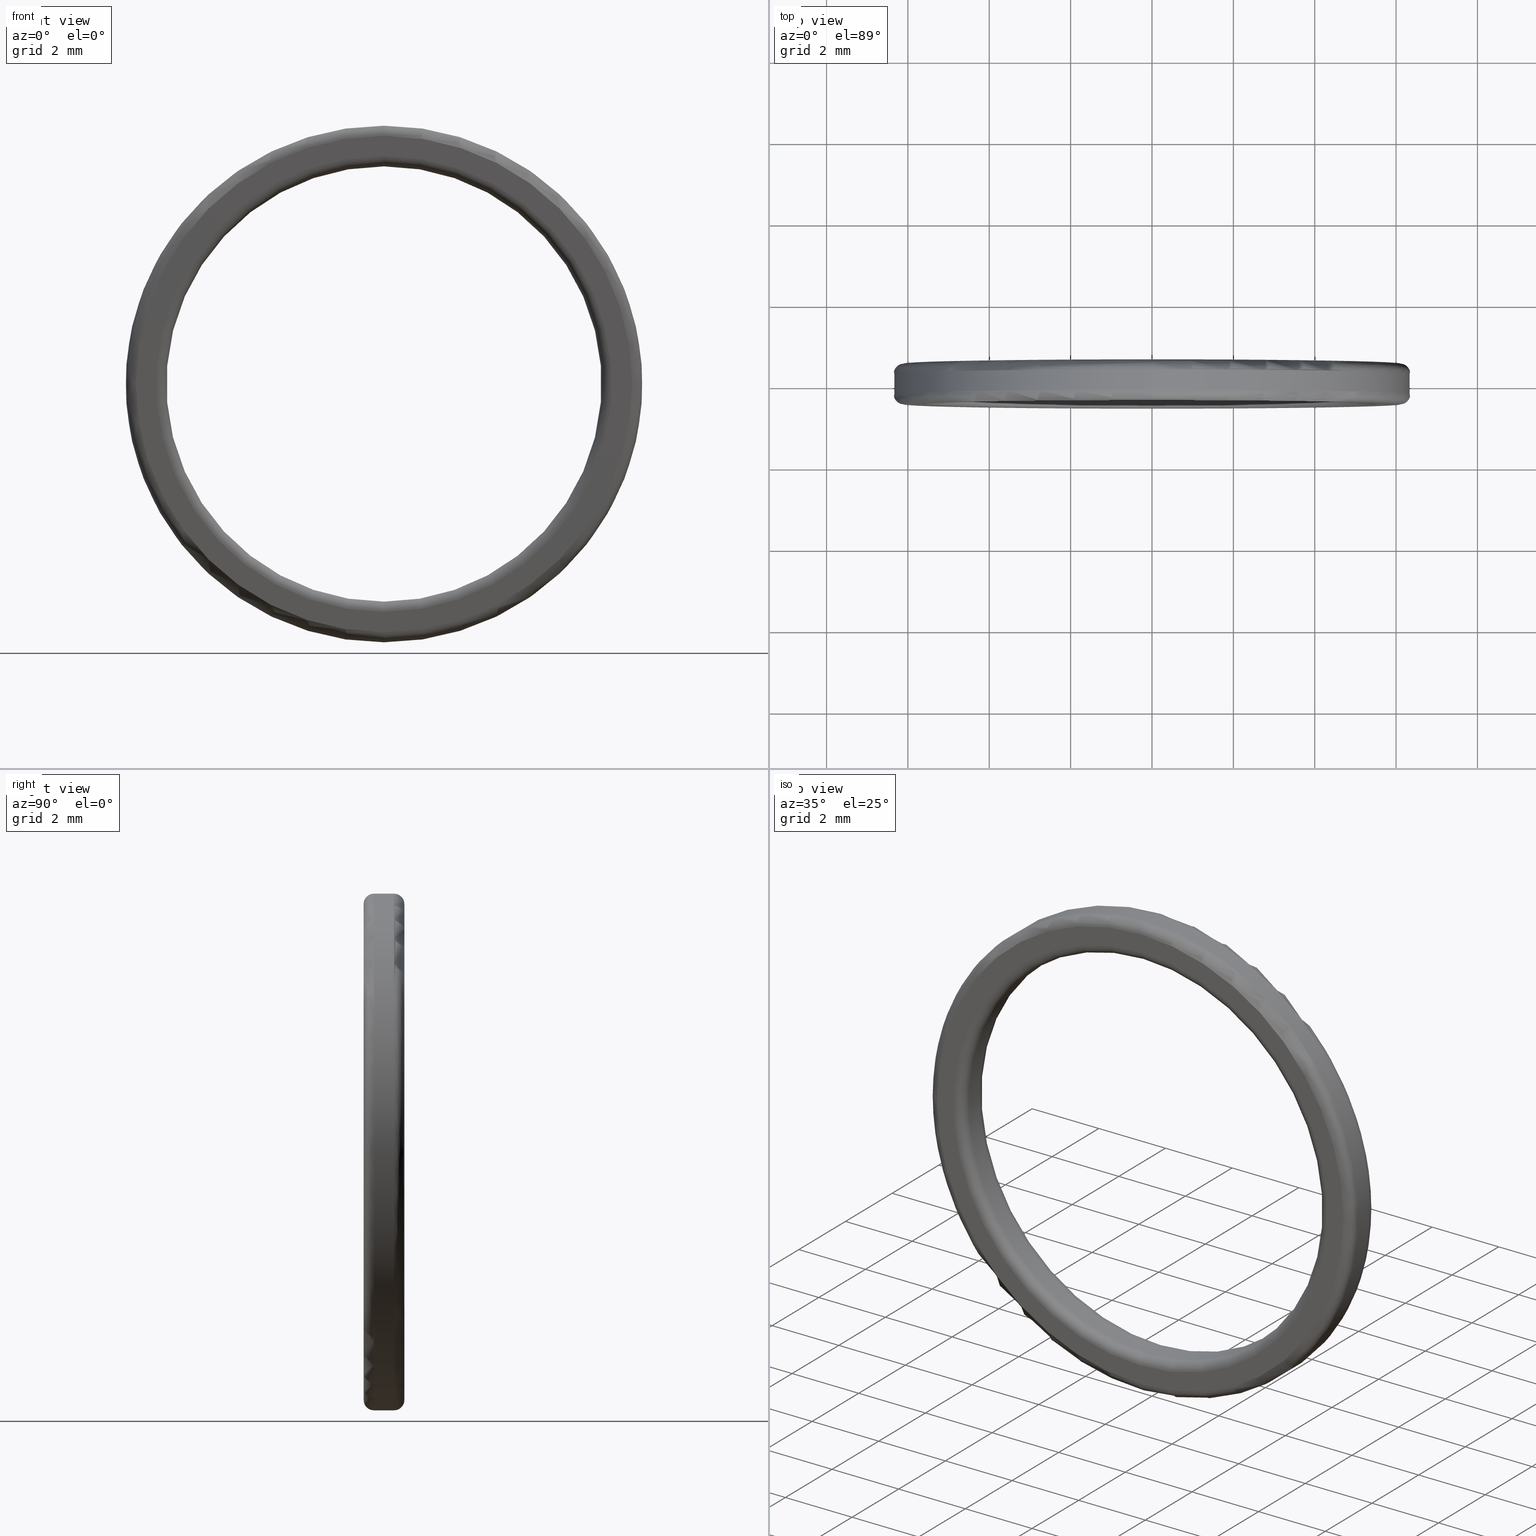
[diagram: canonical four-view strip — front | top / right | iso, engineering-drawing reading convention]
A machine part, canonical four-view strip (front | top / right | iso — engineering-drawing reading convention). The complete STEP part file that produces these views, byte-faithful:
ISO-10303-21;
HEADER;
FILE_DESCRIPTION (( 'STEP AP203' ),
    '1' );
FILE_NAME ('1.8.5.23_ZFK-D0.5_0.5Ӣ���ط�����Ȧ.STEP',
    '2021-07-10T05:47:58',
    ( 'China' ),
    ( 'Home' ),
    'SwSTEP 2.0',
    'SolidWorks 2018',
    '' );
FILE_SCHEMA (( 'CONFIG_CONTROL_DESIGN' ));
ENDSEC;

DATA;
#1 = EDGE_CURVE ( 'NONE', #338, #386, #188, .T. ) ;
#2 = CARTESIAN_POINT ( 'NONE',  ( 0.0000000000000000000, 0.2499999999999993616, 5.349999999999993427 ) ) ;
#3 = CARTESIAN_POINT ( 'NONE',  ( 0.0000000000000000000, -0.2500000000000011102, 6.099999999999994316 ) ) ;
#4 = UNCERTAINTY_MEASURE_WITH_UNIT (LENGTH_MEASURE( 1.000000000000000082E-05 ), #146, 'distance_accuracy_value', 'NONE');
#5 = DIRECTION ( 'NONE',  ( 0.0000000000000000000, 0.0000000000000000000, 1.000000000000000000 ) ) ;
#6 = ORIENTED_EDGE ( 'NONE', *, *, #33, .T. ) ;
#7 = CARTESIAN_POINT ( 'NONE',  ( 0.0000000000000000000, 0.2499999999999993616, 0.0000000000000000000 ) ) ;
#8 = CC_DESIGN_APPROVAL ( #421, ( #311 ) ) ;
#9 = DIRECTION ( 'NONE',  ( 0.0000000000000000000, 0.0000000000000000000, 1.000000000000000000 ) ) ;
#10 = CIRCLE ( 'NONE', #206, 5.599999999999994316 ) ;
#11 = DIRECTION ( 'NONE',  ( -0.0000000000000000000, 1.000000000000000000, -0.0000000000000000000 ) ) ;
#12 = ADVANCED_FACE ( 'NONE', ( #340 ), #108, .T. ) ;
#13 = PERSON_AND_ORGANIZATION ( #253, #222 ) ;
#14 = CARTESIAN_POINT ( 'NONE',  ( 0.0000000000000000000, 4.847222222222231203, 0.0000000000000000000 ) ) ;
#15 = EDGE_LOOP ( 'NONE', ( #293, #103, #36, #109 ) ) ;
#16 = DIRECTION ( 'NONE',  ( -0.0000000000000000000, 1.000000000000000000, -0.0000000000000000000 ) ) ;
#17 = ADVANCED_FACE ( 'NONE', ( #360 ), #366, .T. ) ;
#18 = AXIS2_PLACEMENT_3D ( 'NONE', #244, #448, #414 ) ;
#19 = DIRECTION ( 'NONE',  ( -0.0000000000000000000, 1.000000000000000000, -0.0000000000000000000 ) ) ;
#20 = CARTESIAN_POINT ( 'NONE',  ( 0.0000000000000000000, 0.2499999999999993616, 0.0000000000000000000 ) ) ;
#21 = ORIENTED_EDGE ( 'NONE', *, *, #223, .T. ) ;
#22 = EDGE_CURVE ( 'NONE', #144, #455, #126, .T. ) ;
#23 = CIRCLE ( 'NONE', #63, 0.2500000000000002220 ) ;
#24 = PLANE ( 'NONE',  #257 ) ;
#25 = PERSON_AND_ORGANIZATION_ROLE ( 'classification_officer' ) ;
#26 = LOCAL_TIME ( 13, 47, 58.00000000000000000, #347 ) ;
#27 = AXIS2_PLACEMENT_3D ( 'NONE', #205, #240, #444 ) ;
#28 = FACE_OUTER_BOUND ( 'NONE', #443, .T. ) ;
#29 = LOCAL_TIME ( 13, 47, 58.00000000000000000, #246 ) ;
#30 = VERTEX_POINT ( 'NONE', #290 ) ;
#31 = MANIFOLD_SOLID_BREP ( 'Բ��1', #177 ) ;
#32 = PERSON_AND_ORGANIZATION ( #253, #222 ) ;
#33 = EDGE_CURVE ( 'NONE', #215, #219, #94, .T. ) ;
#34 = APPROVAL_STATUS ( 'not_yet_approved' ) ;
#35 = PERSON_AND_ORGANIZATION_ROLE ( 'design_supplier' ) ;
#36 = ORIENTED_EDGE ( 'NONE', *, *, #301, .F. ) ;
#37 =( NAMED_UNIT ( * ) SI_UNIT ( $, .STERADIAN. ) SOLID_ANGLE_UNIT ( ) );
#38 = EDGE_LOOP ( 'NONE', ( #397, #84 ) ) ;
#39 = AXIS2_PLACEMENT_3D ( 'NONE', #430, #195, #433 ) ;
#40 = ORIENTED_EDGE ( 'NONE', *, *, #97, .T. ) ;
#41 = DIRECTION ( 'NONE',  ( -0.0000000000000000000, 1.000000000000000000, -0.0000000000000000000 ) ) ;
#42 = CARTESIAN_POINT ( 'NONE',  ( 0.0000000000000000000, -0.2500000000000011102, 0.0000000000000000000 ) ) ;
#43 = AXIS2_PLACEMENT_3D ( 'NONE', #14, #400, #302 ) ;
#44 = ORIENTED_EDGE ( 'NONE', *, *, #404, .T. ) ;
#45 = DIRECTION ( 'NONE',  ( -1.000000000000000000, 0.0000000000000000000, 0.0000000000000000000 ) ) ;
#46 =( GEOMETRIC_REPRESENTATION_CONTEXT ( 3 ) GLOBAL_UNCERTAINTY_ASSIGNED_CONTEXT ( ( #4 ) ) GLOBAL_UNIT_ASSIGNED_CONTEXT ( ( #146, #173, #37 ) ) REPRESENTATION_CONTEXT ( 'NONE', 'WORKASPACE' ) );
#47 = DIRECTION ( 'NONE',  ( 0.0000000000000000000, -1.000000000000000000, 0.0000000000000000000 ) ) ;
#48 = DIRECTION ( 'NONE',  ( 0.0000000000000000000, -1.000000000000000000, 0.0000000000000000000 ) ) ;
#49 = EDGE_CURVE ( 'NONE', #215, #135, #118, .T. ) ;
#50 = LOCAL_TIME ( 13, 47, 58.00000000000000000, #56 ) ;
#51 = CARTESIAN_POINT ( 'NONE',  ( 7.623426324692266325E-16, -0.5000000000000011102, -6.099999999999994316 ) ) ;
#52 = ORIENTED_EDGE ( 'NONE', *, *, #435, .F. ) ;
#53 = AXIS2_PLACEMENT_3D ( 'NONE', #186, #45, #77 ) ;
#54 = CARTESIAN_POINT ( 'NONE',  ( 0.0000000000000000000, 0.2499999999999993616, -6.099999999999994316 ) ) ;
#55 = DIRECTION ( 'NONE',  ( 0.0000000000000000000, -1.000000000000000000, 0.0000000000000000000 ) ) ;
#56 = COORDINATED_UNIVERSAL_TIME_OFFSET ( 8, 0, .AHEAD. ) ;
#57 = CARTESIAN_POINT ( 'NONE',  ( 0.0000000000000000000, 0.4999999999999989453, -6.099999999999994316 ) ) ;
#58 = CIRCLE ( 'NONE', #187, 6.099999999999994316 ) ;
#59 = DIRECTION ( 'NONE',  ( 0.0000000000000000000, 0.0000000000000000000, 1.000000000000000000 ) ) ;
#60 = EDGE_LOOP ( 'NONE', ( #292, #172, #74, #165 ) ) ;
#61 = APPROVAL_ROLE ( '' ) ;
#62 = APPROVAL_STATUS ( 'not_yet_approved' ) ;
#63 = AXIS2_PLACEMENT_3D ( 'NONE', #92, #332, #236 ) ;
#64 = ORIENTED_EDGE ( 'NONE', *, *, #1, .F. ) ;
#65 = EDGE_LOOP ( 'NONE', ( #269, #457, #341, #52 ) ) ;
#66 = DIRECTION ( 'NONE',  ( 1.000000000000000000, 0.0000000000000000000, 1.224646799147353207E-16 ) ) ;
#67 = AXIS2_PLACEMENT_3D ( 'NONE', #317, #75, #112 ) ;
#68 = CALENDAR_DATE ( 2021, 10, 7 ) ;
#69 = EDGE_CURVE ( 'NONE', #413, #386, #422, .T. ) ;
#70 = TOROIDAL_SURFACE ( 'NONE', #128, 6.099999999999994316, 0.2500000000000000000 ) ;
#71 = AXIS2_PLACEMENT_3D ( 'NONE', #79, #353, #289 ) ;
#72 = CARTESIAN_POINT ( 'NONE',  ( 0.0000000000000000000, 0.2499999999999993616, 0.0000000000000000000 ) ) ;
#73 = CIRCLE ( 'NONE', #169, 6.349999999999994316 ) ;
#74 = ORIENTED_EDGE ( 'NONE', *, *, #104, .T. ) ;
#75 = DIRECTION ( 'NONE',  ( 0.0000000000000000000, -1.000000000000000000, 0.0000000000000000000 ) ) ;
#76 = PRODUCT ( '1.8.5.23_ZFK-D0.5_0.5Ӣ���ط�����Ȧ', '1.8.5.23_ZFK-D0.5_0.5Ӣ���ط�����Ȧ', '', ( #280 ) ) ;
#77 = DIRECTION ( 'NONE',  ( 0.0000000000000000000, 0.0000000000000000000, 1.000000000000000000 ) ) ;
#78 = FACE_OUTER_BOUND ( 'NONE', #150, .T. ) ;
#79 = CARTESIAN_POINT ( 'NONE',  ( 0.0000000000000000000, -0.2500000000000011102, 0.0000000000000000000 ) ) ;
#80 = ORIENTED_EDGE ( 'NONE', *, *, #346, .F. ) ;
#81 = DIRECTION ( 'NONE',  ( 0.0000000000000000000, 0.0000000000000000000, -1.000000000000000000 ) ) ;
#82 = ADVANCED_FACE ( 'NONE', ( #28 ), #209, .T. ) ;
#83 = CC_DESIGN_SECURITY_CLASSIFICATION ( #311, ( #339 ) ) ;
#84 = ORIENTED_EDGE ( 'NONE', *, *, #1, .T. ) ;
#85 = DIRECTION ( 'NONE',  ( -0.0000000000000000000, 1.000000000000000000, -0.0000000000000000000 ) ) ;
#86 = DIRECTION ( 'NONE',  ( 0.0000000000000000000, 0.0000000000000000000, 1.000000000000000000 ) ) ;
#87 = EDGE_CURVE ( 'NONE', #231, #413, #299, .T. ) ;
#88 = CIRCLE ( 'NONE', #247, 5.599999999999994316 ) ;
#89 = ORIENTED_EDGE ( 'NONE', *, *, #132, .T. ) ;
#90 = CARTESIAN_POINT ( 'NONE',  ( 0.0000000000000000000, -0.5000000000000011102, 6.099999999999994316 ) ) ;
#91 = AXIS2_PLACEMENT_3D ( 'NONE', #391, #47, #5 ) ;
#92 = CARTESIAN_POINT ( 'NONE',  ( 6.858022075225169677E-16, 0.2499999999999993616, 5.599999999999994316 ) ) ;
#93 = VECTOR ( 'NONE', #176, 1000.000000000000000 ) ;
#94 = CIRCLE ( 'NONE', #91, 6.099999999999994316 ) ;
#95 = DIRECTION ( 'NONE',  ( -0.0000000000000000000, 1.000000000000000000, -0.0000000000000000000 ) ) ;
#96 = ORIENTED_EDGE ( 'NONE', *, *, #376, .T. ) ;
#97 = EDGE_CURVE ( 'NONE', #129, #423, #262, .T. ) ;
#98 = APPROVAL_PERSON_ORGANIZATION ( #249, #368, #148 ) ;
#99 = DIRECTION ( 'NONE',  ( 0.0000000000000000000, 0.0000000000000000000, 1.000000000000000000 ) ) ;
#100 = AXIS2_PLACEMENT_3D ( 'NONE', #252, #393, #387 ) ;
#101 = DATE_AND_TIME ( #298, #26 ) ;
#102 = EDGE_LOOP ( 'NONE', ( #420, #263, #113, #288 ) ) ;
#103 = ORIENTED_EDGE ( 'NONE', *, *, #388, .T. ) ;
#104 = EDGE_CURVE ( 'NONE', #135, #144, #276, .T. ) ;
#105 = DIRECTION ( 'NONE',  ( 0.0000000000000000000, 0.0000000000000000000, -1.000000000000000000 ) ) ;
#106 = APPLICATION_CONTEXT ( 'configuration controlled 3d designs of mechanical parts and assemblies' ) ;
#107 = CARTESIAN_POINT ( 'NONE',  ( 0.0000000000000000000, 4.847222222222231203, 5.349999999999993427 ) ) ;
#108 = TOROIDAL_SURFACE ( 'NONE', #67, 5.599999999999994316, 0.2500000000000000000 ) ;
#109 = ORIENTED_EDGE ( 'NONE', *, *, #449, .F. ) ;
#110 = PRODUCT_RELATED_PRODUCT_CATEGORY ( 'detail', '', ( #76 ) ) ;
#111 = ORIENTED_EDGE ( 'NONE', *, *, #33, .F. ) ;
#112 = DIRECTION ( 'NONE',  ( 0.0000000000000000000, 0.0000000000000000000, -1.000000000000000000 ) ) ;
#113 = ORIENTED_EDGE ( 'NONE', *, *, #291, .F. ) ;
#114 = AXIS2_PLACEMENT_3D ( 'NONE', #117, #453, #424 ) ;
#115 = CIRCLE ( 'NONE', #27, 0.2500000000000002220 ) ;
#116 = CARTESIAN_POINT ( 'NONE',  ( 0.0000000000000000000, 0.4999999999999989453, 0.0000000000000000000 ) ) ;
#117 = CARTESIAN_POINT ( 'NONE',  ( 0.0000000000000000000, -0.5000000000000011102, 0.0000000000000000000 ) ) ;
#118 = CIRCLE ( 'NONE', #159, 0.2500000000000002220 ) ;
#119 = PRODUCT_DEFINITION ( 'δ֪', '', #339, #136 ) ;
#120 = PERSON_AND_ORGANIZATION ( #253, #222 ) ;
#121 = DIRECTION ( 'NONE',  ( -0.0000000000000000000, 1.000000000000000000, -0.0000000000000000000 ) ) ;
#122 = CARTESIAN_POINT ( 'NONE',  ( 0.0000000000000000000, 4.847222222222231203, 0.0000000000000000000 ) ) ;
#123 = EDGE_CURVE ( 'NONE', #345, #135, #254, .T. ) ;
#124 = FACE_OUTER_BOUND ( 'NONE', #355, .T. ) ;
#125 = DIRECTION ( 'NONE',  ( 0.0000000000000000000, 0.0000000000000000000, 1.000000000000000000 ) ) ;
#126 = CIRCLE ( 'NONE', #100, 6.349999999999994316 ) ;
#127 = DIRECTION ( 'NONE',  ( 0.0000000000000000000, 0.0000000000000000000, -1.000000000000000000 ) ) ;
#128 = AXIS2_PLACEMENT_3D ( 'NONE', #7, #258, #161 ) ;
#129 = VERTEX_POINT ( 'NONE', #2 ) ;
#130 = PERSON_AND_ORGANIZATION ( #253, #222 ) ;
#131 = CARTESIAN_POINT ( 'NONE',  ( 0.0000000000000000000, 0.2499999999999993616, 6.349999999999994316 ) ) ;
#132 = EDGE_CURVE ( 'NONE', #326, #450, #349, .T. ) ;
#133 = ADVANCED_FACE ( 'NONE', ( #286 ), #183, .T. ) ;
#134 = CARTESIAN_POINT ( 'NONE',  ( 7.470345474798847390E-16, -0.2500000000000011102, -6.099999999999994316 ) ) ;
#135 = VERTEX_POINT ( 'NONE', #320 ) ;
#136 = DESIGN_CONTEXT ( 'detailed design', #106, 'design' ) ;
#137 = CARTESIAN_POINT ( 'NONE',  ( 0.0000000000000000000, 0.0000000000000000000, 0.0000000000000000000 ) ) ;
#138 = ORIENTED_EDGE ( 'NONE', *, *, #435, .T. ) ;
#139 = DIRECTION ( 'NONE',  ( -0.0000000000000000000, 1.000000000000000000, -0.0000000000000000000 ) ) ;
#140 = CYLINDRICAL_SURFACE ( 'NONE', #452, 5.349999999999993427 ) ;
#141 = LINE ( 'NONE', #107, #93 ) ;
#142 = DIRECTION ( 'NONE',  ( 0.0000000000000000000, 0.0000000000000000000, -1.000000000000000000 ) ) ;
#143 = DIRECTION ( 'NONE',  ( 0.0000000000000000000, -1.000000000000000000, 0.0000000000000000000 ) ) ;
#144 = VERTEX_POINT ( 'NONE', #131 ) ;
#145 = DIRECTION ( 'NONE',  ( 0.0000000000000000000, -1.000000000000000000, 0.0000000000000000000 ) ) ;
#146 =( LENGTH_UNIT ( ) NAMED_UNIT ( * ) SI_UNIT ( .MILLI., .METRE. ) );
#147 = CIRCLE ( 'NONE', #271, 6.349999999999994316 ) ;
#148 = APPROVAL_ROLE ( '' ) ;
#149 = AXIS2_PLACEMENT_3D ( 'NONE', #164, #48, #81 ) ;
#150 = EDGE_LOOP ( 'NONE', ( #6, #447 ) ) ;
#151 = APPROVAL_ROLE ( '' ) ;
#152 = AXIS2_PLACEMENT_3D ( 'NONE', #72, #221, #456 ) ;
#153 = EDGE_LOOP ( 'NONE', ( #178, #369 ) ) ;
#154 = AXIS2_PLACEMENT_3D ( 'NONE', #365, #166, #403 ) ;
#155 = DIRECTION ( 'NONE',  ( 0.0000000000000000000, 0.0000000000000000000, 1.000000000000000000 ) ) ;
#156 = CARTESIAN_POINT ( 'NONE',  ( 0.0000000000000000000, -0.2500000000000011102, 0.0000000000000000000 ) ) ;
#157 = DIRECTION ( 'NONE',  ( 0.0000000000000000000, 0.0000000000000000000, 1.000000000000000000 ) ) ;
#158 = FACE_OUTER_BOUND ( 'NONE', #283, .T. ) ;
#159 = AXIS2_PLACEMENT_3D ( 'NONE', #3, #319, #189 ) ;
#160 = ORIENTED_EDGE ( 'NONE', *, *, #388, .F. ) ;
#161 = DIRECTION ( 'NONE',  ( 0.0000000000000000000, 0.0000000000000000000, -1.000000000000000000 ) ) ;
#162 = EDGE_CURVE ( 'NONE', #30, #210, #88, .T. ) ;
#163 = ADVANCED_FACE ( 'NONE', ( #174 ), #336, .T. ) ;
#164 = CARTESIAN_POINT ( 'NONE',  ( 0.0000000000000000000, 0.2499999999999993616, 0.0000000000000000000 ) ) ;
#165 = ORIENTED_EDGE ( 'NONE', *, *, #22, .T. ) ;
#166 = DIRECTION ( 'NONE',  ( -0.0000000000000000000, 1.000000000000000000, -0.0000000000000000000 ) ) ;
#167 = SHAPE_DEFINITION_REPRESENTATION ( #440, #277 ) ;
#168 = CARTESIAN_POINT ( 'NONE',  ( 0.0000000000000000000, 0.2499999999999993616, 0.0000000000000000000 ) ) ;
#169 = AXIS2_PLACEMENT_3D ( 'NONE', #232, #297, #86 ) ;
#170 = CARTESIAN_POINT ( 'NONE',  ( 6.551860375438331807E-16, 4.847222222222231203, -5.349999999999993427 ) ) ;
#171 = FACE_OUTER_BOUND ( 'NONE', #402, .T. ) ;
#172 = ORIENTED_EDGE ( 'NONE', *, *, #123, .T. ) ;
#173 =( NAMED_UNIT ( * ) PLANE_ANGLE_UNIT ( ) SI_UNIT ( $, .RADIAN. ) );
#174 = FACE_OUTER_BOUND ( 'NONE', #316, .T. ) ;
#175 = EDGE_CURVE ( 'NONE', #135, #345, #73, .T. ) ;
#176 = DIRECTION ( 'NONE',  ( -0.0000000000000000000, 1.000000000000000000, -0.0000000000000000000 ) ) ;
#177 = CLOSED_SHELL ( 'NONE', ( #227, #425, #82, #133, #327, #163, #264, #395, #230, #329, #401, #17, #12, #191 ) ) ;
#178 = ORIENTED_EDGE ( 'NONE', *, *, #301, .T. ) ;
#179 = AXIS2_PLACEMENT_3D ( 'NONE', #116, #351, #127 ) ;
#180 = VECTOR ( 'NONE', #19, 1000.000000000000000 ) ;
#181 = FACE_OUTER_BOUND ( 'NONE', #15, .T. ) ;
#182 = CARTESIAN_POINT ( 'NONE',  ( 0.0000000000000000000, 4.847222222222231203, 6.349999999999994316 ) ) ;
#183 = TOROIDAL_SURFACE ( 'NONE', #432, 5.599999999999994316, 0.2500000000000000000 ) ;
#184 = ORIENTED_EDGE ( 'NONE', *, *, #49, .F. ) ;
#185 = CARTESIAN_POINT ( 'NONE',  ( 0.0000000000000000000, -0.2500000000000011102, 0.0000000000000000000 ) ) ;
#186 = CARTESIAN_POINT ( 'NONE',  ( 0.0000000000000000000, -0.2500000000000011102, 5.599999999999994316 ) ) ;
#187 = AXIS2_PLACEMENT_3D ( 'NONE', #428, #294, #361 ) ;
#188 = CIRCLE ( 'NONE', #114, 5.599999999999994316 ) ;
#189 = DIRECTION ( 'NONE',  ( 0.0000000000000000000, 0.0000000000000000000, 1.000000000000000000 ) ) ;
#190 = CARTESIAN_POINT ( 'NONE',  ( 6.551860375438331807E-16, -0.2500000000000011102, -5.349999999999993427 ) ) ;
#191 = ADVANCED_FACE ( 'NONE', ( #158 ), #70, .T. ) ;
#192 = COORDINATED_UNIVERSAL_TIME_OFFSET ( 8, 0, .AHEAD. ) ;
#193 = CC_DESIGN_PERSON_AND_ORGANIZATION_ASSIGNMENT ( #382, #272, ( #76 ) ) ;
#194 = ORIENTED_EDGE ( 'NONE', *, *, #381, .F. ) ;
#195 = DIRECTION ( 'NONE',  ( 1.000000000000000000, 0.0000000000000000000, 1.224646799147353207E-16 ) ) ;
#196 = CARTESIAN_POINT ( 'NONE',  ( 6.858022075225169677E-16, -0.5000000000000011102, -5.599999999999994316 ) ) ;
#197 = EDGE_CURVE ( 'NONE', #219, #215, #58, .T. ) ;
#198 = DATE_AND_TIME ( #238, #226 ) ;
#199 = CIRCLE ( 'NONE', #18, 0.2500000000000002220 ) ;
#200 = CARTESIAN_POINT ( 'NONE',  ( 0.0000000000000000000, -0.2500000000000011102, 0.0000000000000000000 ) ) ;
#201 = ORIENTED_EDGE ( 'NONE', *, *, #175, .T. ) ;
#202 = EDGE_LOOP ( 'NONE', ( #373, #409, #248, #64 ) ) ;
#203 = DIRECTION ( 'NONE',  ( -0.0000000000000000000, 1.000000000000000000, -0.0000000000000000000 ) ) ;
#204 = CIRCLE ( 'NONE', #214, 5.349999999999993427 ) ;
#205 = CARTESIAN_POINT ( 'NONE',  ( 7.470345474798847390E-16, 0.2499999999999993616, 6.099999999999994316 ) ) ;
#206 = AXIS2_PLACEMENT_3D ( 'NONE', #233, #438, #142 ) ;
#207 = LINE ( 'NONE', #333, #324 ) ;
#208 = DATE_TIME_ROLE ( 'classification_date' ) ;
#209 = TOROIDAL_SURFACE ( 'NONE', #296, 6.099999999999994316, 0.2500000000000000000 ) ;
#210 = VERTEX_POINT ( 'NONE', #398 ) ;
#211 = APPROVAL_PERSON_ORGANIZATION ( #334, #421, #61 ) ;
#212 = CARTESIAN_POINT ( 'NONE',  ( 7.623426324692266325E-16, 0.4999999999999989453, 6.099999999999994316 ) ) ;
#213 = ORIENTED_EDGE ( 'NONE', *, *, #412, .F. ) ;
#214 = AXIS2_PLACEMENT_3D ( 'NONE', #168, #203, #337 ) ;
#215 = VERTEX_POINT ( 'NONE', #90 ) ;
#216 = FACE_BOUND ( 'NONE', #153, .T. ) ;
#217 = DATE_AND_TIME ( #396, #29 ) ;
#218 = DIRECTION ( 'NONE',  ( -0.0000000000000000000, 1.000000000000000000, -0.0000000000000000000 ) ) ;
#219 = VERTEX_POINT ( 'NONE', #51 ) ;
#220 = CC_DESIGN_DATE_AND_TIME_ASSIGNMENT ( #275, #407, ( #119 ) ) ;
#221 = DIRECTION ( 'NONE',  ( -0.0000000000000000000, 1.000000000000000000, -0.0000000000000000000 ) ) ;
#222 = ORGANIZATION ( 'δָ��', 'δָ��', '' ) ;
#223 = EDGE_CURVE ( 'NONE', #450, #326, #429, .T. ) ;
#224 = DIRECTION ( 'NONE',  ( -0.0000000000000000000, 1.000000000000000000, -0.0000000000000000000 ) ) ;
#225 = DIRECTION ( 'NONE',  ( 0.0000000000000000000, 0.0000000000000000000, 1.000000000000000000 ) ) ;
#226 = LOCAL_TIME ( 13, 47, 58.00000000000000000, #426 ) ;
#227 = ADVANCED_FACE ( 'NONE', ( #171 ), #419, .T. ) ;
#228 = AXIS2_PLACEMENT_3D ( 'NONE', #200, #143, #406 ) ;
#229 = DIRECTION ( 'NONE',  ( 0.0000000000000000000, 0.0000000000000000000, -1.000000000000000000 ) ) ;
#230 = ADVANCED_FACE ( 'NONE', ( #427 ), #279, .F. ) ;
#231 = VERTEX_POINT ( 'NONE', #190 ) ;
#232 = CARTESIAN_POINT ( 'NONE',  ( 0.0000000000000000000, -0.2500000000000011102, 0.0000000000000000000 ) ) ;
#233 = CARTESIAN_POINT ( 'NONE',  ( 0.0000000000000000000, 0.4999999999999989453, 0.0000000000000000000 ) ) ;
#234 = ORIENTED_EDGE ( 'NONE', *, *, #449, .T. ) ;
#235 = PLANE ( 'NONE',  #287 ) ;
#236 = DIRECTION ( 'NONE',  ( -1.224646799147353454E-16, 0.0000000000000000000, -1.000000000000000000 ) ) ;
#237 = AXIS2_PLACEMENT_3D ( 'NONE', #134, #66, #343 ) ;
#238 = CALENDAR_DATE ( 2021, 10, 7 ) ;
#239 = CIRCLE ( 'NONE', #384, 0.2500000000000002220 ) ;
#240 = DIRECTION ( 'NONE',  ( 1.000000000000000000, 0.0000000000000000000, -1.224646799147353207E-16 ) ) ;
#241 = CARTESIAN_POINT ( 'NONE',  ( 0.0000000000000000000, -0.2500000000000011102, 5.349999999999993427 ) ) ;
#242 = PERSON_AND_ORGANIZATION_ROLE ( 'creator' ) ;
#243 = APPROVAL ( #62, 'δָ��' ) ;
#244 = CARTESIAN_POINT ( 'NONE',  ( 0.0000000000000000000, 0.2499999999999993616, -5.599999999999994316 ) ) ;
#245 = DIRECTION ( 'NONE',  ( 1.000000000000000000, 0.0000000000000000000, 0.0000000000000000000 ) ) ;
#246 = COORDINATED_UNIVERSAL_TIME_OFFSET ( 8, 0, .AHEAD. ) ;
#247 = AXIS2_PLACEMENT_3D ( 'NONE', #260, #55, #229 ) ;
#248 = ORIENTED_EDGE ( 'NONE', *, *, #69, .T. ) ;
#249 = PERSON_AND_ORGANIZATION ( #253, #222 ) ;
#250 = TOROIDAL_SURFACE ( 'NONE', #154, 5.599999999999994316, 0.2500000000000000000 ) ;
#251 = EDGE_CURVE ( 'NONE', #231, #338, #389, .T. ) ;
#252 = CARTESIAN_POINT ( 'NONE',  ( 0.0000000000000000000, 0.2499999999999993616, 0.0000000000000000000 ) ) ;
#253 = PERSON ( 'δָ��', 'δָ��', 'δָ��', ('δָ��'), ('δָ��'), ('δָ��') ) ;
#254 = CIRCLE ( 'NONE', #306, 6.349999999999994316 ) ;
#255 = EDGE_LOOP ( 'NONE', ( #194, #304, #138, #40 ) ) ;
#256 = DIRECTION ( 'NONE',  ( -0.0000000000000000000, 1.000000000000000000, -0.0000000000000000000 ) ) ;
#257 = AXIS2_PLACEMENT_3D ( 'NONE', #265, #305, #267 ) ;
#258 = DIRECTION ( 'NONE',  ( 0.0000000000000000000, -1.000000000000000000, 0.0000000000000000000 ) ) ;
#259 = ORIENTED_EDGE ( 'NONE', *, *, #273, .F. ) ;
#260 = CARTESIAN_POINT ( 'NONE',  ( 0.0000000000000000000, 0.4999999999999989453, 0.0000000000000000000 ) ) ;
#261 = CC_DESIGN_PERSON_AND_ORGANIZATION_ASSIGNMENT ( #130, #35, ( #339 ) ) ;
#262 = CIRCLE ( 'NONE', #152, 5.349999999999993427 ) ;
#263 = ORIENTED_EDGE ( 'NONE', *, *, #251, .T. ) ;
#264 = ADVANCED_FACE ( 'NONE', ( #352 ), #411, .T. ) ;
#265 = CARTESIAN_POINT ( 'NONE',  ( 5.349999999999993427, -0.5000000000000011102, 0.0000000000000000000 ) ) ;
#266 = CARTESIAN_POINT ( 'NONE',  ( 6.551860375438331807E-16, 0.2499999999999993616, -5.349999999999993427 ) ) ;
#267 = DIRECTION ( 'NONE',  ( 0.0000000000000000000, 0.0000000000000000000, 1.000000000000000000 ) ) ;
#268 = ORIENTED_EDGE ( 'NONE', *, *, #273, .T. ) ;
#269 = ORIENTED_EDGE ( 'NONE', *, *, #371, .T. ) ;
#270 = DIRECTION ( 'NONE',  ( 0.0000000000000000000, -1.000000000000000000, 0.0000000000000000000 ) ) ;
#271 = AXIS2_PLACEMENT_3D ( 'NONE', #20, #270, #441 ) ;
#272 = PERSON_AND_ORGANIZATION_ROLE ( 'design_owner' ) ;
#273 = EDGE_CURVE ( 'NONE', #326, #455, #239, .T. ) ;
#274 = APPLICATION_PROTOCOL_DEFINITION ( 'international standard', 'config_control_design', 1994, #106 ) ;
#275 = DATE_AND_TIME ( #359, #454 ) ;
#276 = LINE ( 'NONE', #182, #385 ) ;
#277 = ADVANCED_BREP_SHAPE_REPRESENTATION ( '1.8.5.23_ZFK-D0.5_0.5Ӣ���ط�����Ȧ', ( #31, #282 ), #46 ) ;
#278 = ORIENTED_EDGE ( 'NONE', *, *, #197, .F. ) ;
#279 = CYLINDRICAL_SURFACE ( 'NONE', #357, 5.349999999999993427 ) ;
#280 = MECHANICAL_CONTEXT ( 'NONE', #410, 'mechanical' ) ;
#281 = ORIENTED_EDGE ( 'NONE', *, *, #175, .F. ) ;
#282 = AXIS2_PLACEMENT_3D ( 'NONE', #137, #342, #245 ) ;
#283 = EDGE_LOOP ( 'NONE', ( #331, #390, #268, #431 ) ) ;
#284 = PERSON_AND_ORGANIZATION ( #253, #222 ) ;
#285 = DIRECTION ( 'NONE',  ( 0.0000000000000000000, 0.0000000000000000000, 1.000000000000000000 ) ) ;
#286 = FACE_OUTER_BOUND ( 'NONE', #102, .T. ) ;
#287 = AXIS2_PLACEMENT_3D ( 'NONE', #370, #367, #308 ) ;
#288 = ORIENTED_EDGE ( 'NONE', *, *, #69, .F. ) ;
#289 = DIRECTION ( 'NONE',  ( 0.0000000000000000000, 0.0000000000000000000, 1.000000000000000000 ) ) ;
#290 = CARTESIAN_POINT ( 'NONE',  ( 6.858022075225169677E-16, 0.4999999999999991673, 5.599999999999994316 ) ) ;
#291 = EDGE_CURVE ( 'NONE', #386, #338, #307, .T. ) ;
#292 = ORIENTED_EDGE ( 'NONE', *, *, #404, .F. ) ;
#293 = ORIENTED_EDGE ( 'NONE', *, *, #97, .F. ) ;
#294 = DIRECTION ( 'NONE',  ( 0.0000000000000000000, -1.000000000000000000, 0.0000000000000000000 ) ) ;
#295 = CARTESIAN_POINT ( 'NONE',  ( 0.0000000000000000000, 4.847222222222231203, 0.0000000000000000000 ) ) ;
#296 = AXIS2_PLACEMENT_3D ( 'NONE', #185, #41, #285 ) ;
#297 = DIRECTION ( 'NONE',  ( -0.0000000000000000000, 1.000000000000000000, -0.0000000000000000000 ) ) ;
#298 = CALENDAR_DATE ( 2021, 10, 7 ) ;
#299 = CIRCLE ( 'NONE', #71, 5.349999999999993427 ) ;
#300 = ORIENTED_EDGE ( 'NONE', *, *, #312, .T. ) ;
#301 = EDGE_CURVE ( 'NONE', #210, #30, #10, .T. ) ;
#302 = DIRECTION ( 'NONE',  ( 0.0000000000000000000, 0.0000000000000000000, 1.000000000000000000 ) ) ;
#303 = ORIENTED_EDGE ( 'NONE', *, *, #123, .F. ) ;
#304 = ORIENTED_EDGE ( 'NONE', *, *, #87, .T. ) ;
#305 = DIRECTION ( 'NONE',  ( -0.0000000000000000000, 1.000000000000000000, 0.0000000000000000000 ) ) ;
#306 = AXIS2_PLACEMENT_3D ( 'NONE', #321, #121, #354 ) ;
#307 = CIRCLE ( 'NONE', #446, 5.599999999999994316 ) ;
#308 = DIRECTION ( 'NONE',  ( 0.0000000000000000000, -0.0000000000000000000, -1.000000000000000000 ) ) ;
#309 = CARTESIAN_POINT ( 'NONE',  ( 7.776507174585686247E-16, -0.2500000000000011102, -6.349999999999994316 ) ) ;
#310 = EDGE_LOOP ( 'NONE', ( #213, #111, #362, #303 ) ) ;
#311 = SECURITY_CLASSIFICATION ( '', '', #377 ) ;
#312 = EDGE_CURVE ( 'NONE', #455, #144, #147, .T. ) ;
#313 = CARTESIAN_POINT ( 'NONE',  ( 7.776507174585686247E-16, 0.2499999999999993616, -6.349999999999994316 ) ) ;
#314 = APPROVAL_STATUS ( 'not_yet_approved' ) ;
#315 = AXIS2_PLACEMENT_3D ( 'NONE', #335, #145, #105 ) ;
#316 = EDGE_LOOP ( 'NONE', ( #201, #44, #300, #356 ) ) ;
#317 = CARTESIAN_POINT ( 'NONE',  ( 0.0000000000000000000, 0.2499999999999993616, 0.0000000000000000000 ) ) ;
#318 = CIRCLE ( 'NONE', #228, 5.349999999999993427 ) ;
#319 = DIRECTION ( 'NONE',  ( -1.000000000000000000, 0.0000000000000000000, 0.0000000000000000000 ) ) ;
#320 = CARTESIAN_POINT ( 'NONE',  ( 0.0000000000000000000, -0.2500000000000011102, 6.349999999999994316 ) ) ;
#321 = CARTESIAN_POINT ( 'NONE',  ( 0.0000000000000000000, -0.2500000000000011102, 0.0000000000000000000 ) ) ;
#322 = DATE_AND_TIME ( #68, #50 ) ;
#323 = CC_DESIGN_APPROVAL ( #368, ( #119 ) ) ;
#324 = VECTOR ( 'NONE', #95, 1000.000000000000000 ) ;
#325 = CARTESIAN_POINT ( 'NONE',  ( 0.0000000000000000000, 0.4999999999999989453, 0.0000000000000000000 ) ) ;
#326 = VERTEX_POINT ( 'NONE', #57 ) ;
#327 = ADVANCED_FACE ( 'NONE', ( #416 ), #140, .F. ) ;
#328 = CC_DESIGN_PERSON_AND_ORGANIZATION_ASSIGNMENT ( #32, #25, ( #311 ) ) ;
#329 = ADVANCED_FACE ( 'NONE', ( #216, #124 ), #235, .F. ) ;
#330 = DIRECTION ( 'NONE',  ( 0.0000000000000000000, 0.0000000000000000000, -1.000000000000000000 ) ) ;
#331 = ORIENTED_EDGE ( 'NONE', *, *, #376, .F. ) ;
#332 = DIRECTION ( 'NONE',  ( 1.000000000000000000, 0.0000000000000000000, -1.224646799147353207E-16 ) ) ;
#333 = CARTESIAN_POINT ( 'NONE',  ( 7.776507174585686247E-16, 4.847222222222231203, -6.349999999999994316 ) ) ;
#334 = PERSON_AND_ORGANIZATION ( #253, #222 ) ;
#335 = CARTESIAN_POINT ( 'NONE',  ( 0.0000000000000000000, 0.2499999999999993616, 0.0000000000000000000 ) ) ;
#336 = CYLINDRICAL_SURFACE ( 'NONE', #43, 6.349999999999994316 ) ;
#337 = DIRECTION ( 'NONE',  ( 0.0000000000000000000, 0.0000000000000000000, -1.000000000000000000 ) ) ;
#338 = VERTEX_POINT ( 'NONE', #196 ) ;
#339 = PRODUCT_DEFINITION_FORMATION_WITH_SPECIFIED_SOURCE ( '�κ�', '', #76, .NOT_KNOWN. ) ;
#340 = FACE_OUTER_BOUND ( 'NONE', #378, .T. ) ;
#341 = ORIENTED_EDGE ( 'NONE', *, *, #346, .T. ) ;
#342 = DIRECTION ( 'NONE',  ( 0.0000000000000000000, 0.0000000000000000000, 1.000000000000000000 ) ) ;
#343 = DIRECTION ( 'NONE',  ( 1.224646799147353454E-16, 0.0000000000000000000, -1.000000000000000000 ) ) ;
#344 = CC_DESIGN_APPROVAL ( #243, ( #339 ) ) ;
#345 = VERTEX_POINT ( 'NONE', #309 ) ;
#346 = EDGE_CURVE ( 'NONE', #423, #129, #204, .T. ) ;
#347 = COORDINATED_UNIVERSAL_TIME_OFFSET ( 8, 0, .AHEAD. ) ;
#348 = AXIS2_PLACEMENT_3D ( 'NONE', #42, #218, #155 ) ;
#349 = CIRCLE ( 'NONE', #179, 6.099999999999994316 ) ;
#350 = APPROVAL_DATE_TIME ( #217, #243 ) ;
#351 = DIRECTION ( 'NONE',  ( -0.0000000000000000000, 1.000000000000000000, -0.0000000000000000000 ) ) ;
#352 = FACE_OUTER_BOUND ( 'NONE', #60, .T. ) ;
#353 = DIRECTION ( 'NONE',  ( 0.0000000000000000000, -1.000000000000000000, 0.0000000000000000000 ) ) ;
#354 = DIRECTION ( 'NONE',  ( 0.0000000000000000000, 0.0000000000000000000, 1.000000000000000000 ) ) ;
#355 = EDGE_LOOP ( 'NONE', ( #89, #21 ) ) ;
#356 = ORIENTED_EDGE ( 'NONE', *, *, #104, .F. ) ;
#357 = AXIS2_PLACEMENT_3D ( 'NONE', #122, #11, #157 ) ;
#358 = CARTESIAN_POINT ( 'NONE',  ( 0.0000000000000000000, 4.847222222222231203, 0.0000000000000000000 ) ) ;
#359 = CALENDAR_DATE ( 2021, 10, 7 ) ;
#360 = FACE_OUTER_BOUND ( 'NONE', #310, .T. ) ;
#361 = DIRECTION ( 'NONE',  ( 0.0000000000000000000, 0.0000000000000000000, 1.000000000000000000 ) ) ;
#362 = ORIENTED_EDGE ( 'NONE', *, *, #49, .T. ) ;
#363 = CARTESIAN_POINT ( 'NONE',  ( 0.0000000000000000000, -0.5000000000000011102, 5.599999999999994316 ) ) ;
#364 = TOROIDAL_SURFACE ( 'NONE', #315, 5.599999999999994316, 0.2500000000000000000 ) ;
#365 = CARTESIAN_POINT ( 'NONE',  ( 0.0000000000000000000, -0.2500000000000011102, 0.0000000000000000000 ) ) ;
#366 = TOROIDAL_SURFACE ( 'NONE', #348, 6.099999999999994316, 0.2500000000000000000 ) ;
#367 = DIRECTION ( 'NONE',  ( 0.0000000000000000000, -1.000000000000000000, 0.0000000000000000000 ) ) ;
#368 = APPROVAL ( #314, 'δָ��' ) ;
#369 = ORIENTED_EDGE ( 'NONE', *, *, #162, .T. ) ;
#370 = CARTESIAN_POINT ( 'NONE',  ( 5.349999999999993427, 0.4999999999999989453, 0.0000000000000000000 ) ) ;
#371 = EDGE_CURVE ( 'NONE', #413, #231, #318, .T. ) ;
#372 = APPROVAL_DATE_TIME ( #101, #368 ) ;
#373 = ORIENTED_EDGE ( 'NONE', *, *, #251, .F. ) ;
#374 = AXIS2_PLACEMENT_3D ( 'NONE', #358, #394, #9 ) ;
#375 = APPLICATION_PROTOCOL_DEFINITION ( 'international standard', 'config_control_design', 1994, #410 ) ;
#376 = EDGE_CURVE ( 'NONE', #450, #144, #115, .T. ) ;
#377 = SECURITY_CLASSIFICATION_LEVEL ( 'unclassified' ) ;
#378 = EDGE_LOOP ( 'NONE', ( #160, #80, #234, #437 ) ) ;
#379 = PERSON_AND_ORGANIZATION_ROLE ( 'creator' ) ;
#380 = ORIENTED_EDGE ( 'NONE', *, *, #223, .F. ) ;
#381 = EDGE_CURVE ( 'NONE', #231, #423, #451, .T. ) ;
#382 = PERSON_AND_ORGANIZATION ( #253, #222 ) ;
#383 = FACE_BOUND ( 'NONE', #38, .T. ) ;
#384 = AXIS2_PLACEMENT_3D ( 'NONE', #54, #434, #125 ) ;
#385 = VECTOR ( 'NONE', #224, 1000.000000000000000 ) ;
#386 = VERTEX_POINT ( 'NONE', #363 ) ;
#387 = DIRECTION ( 'NONE',  ( 0.0000000000000000000, 0.0000000000000000000, -1.000000000000000000 ) ) ;
#388 = EDGE_CURVE ( 'NONE', #129, #30, #23, .T. ) ;
#389 = CIRCLE ( 'NONE', #39, 0.2500000000000002220 ) ;
#390 = ORIENTED_EDGE ( 'NONE', *, *, #132, .F. ) ;
#391 = CARTESIAN_POINT ( 'NONE',  ( 0.0000000000000000000, -0.5000000000000011102, 0.0000000000000000000 ) ) ;
#392 = ORIENTED_EDGE ( 'NONE', *, *, #412, .T. ) ;
#393 = DIRECTION ( 'NONE',  ( 0.0000000000000000000, -1.000000000000000000, 0.0000000000000000000 ) ) ;
#394 = DIRECTION ( 'NONE',  ( -0.0000000000000000000, 1.000000000000000000, -0.0000000000000000000 ) ) ;
#395 = ADVANCED_FACE ( 'NONE', ( #383, #78 ), #24, .F. ) ;
#396 = CALENDAR_DATE ( 2021, 10, 7 ) ;
#397 = ORIENTED_EDGE ( 'NONE', *, *, #291, .T. ) ;
#398 = CARTESIAN_POINT ( 'NONE',  ( 0.0000000000000000000, 0.4999999999999991673, -5.599999999999994316 ) ) ;
#399 = CC_DESIGN_DATE_AND_TIME_ASSIGNMENT ( #322, #208, ( #311 ) ) ;
#400 = DIRECTION ( 'NONE',  ( -0.0000000000000000000, 1.000000000000000000, -0.0000000000000000000 ) ) ;
#401 = ADVANCED_FACE ( 'NONE', ( #405 ), #250, .T. ) ;
#402 = EDGE_LOOP ( 'NONE', ( #380, #96, #436, #259 ) ) ;
#403 = DIRECTION ( 'NONE',  ( 0.0000000000000000000, 0.0000000000000000000, 1.000000000000000000 ) ) ;
#404 = EDGE_CURVE ( 'NONE', #345, #455, #207, .T. ) ;
#405 = FACE_OUTER_BOUND ( 'NONE', #202, .T. ) ;
#406 = DIRECTION ( 'NONE',  ( 0.0000000000000000000, 0.0000000000000000000, 1.000000000000000000 ) ) ;
#407 = DATE_TIME_ROLE ( 'creation_date' ) ;
#408 = AXIS2_PLACEMENT_3D ( 'NONE', #325, #85, #330 ) ;
#409 = ORIENTED_EDGE ( 'NONE', *, *, #371, .F. ) ;
#410 = APPLICATION_CONTEXT ( 'configuration controlled 3d designs of mechanical parts and assemblies' ) ;
#411 = CYLINDRICAL_SURFACE ( 'NONE', #374, 6.349999999999994316 ) ;
#412 = EDGE_CURVE ( 'NONE', #219, #345, #417, .T. ) ;
#413 = VERTEX_POINT ( 'NONE', #241 ) ;
#414 = DIRECTION ( 'NONE',  ( 0.0000000000000000000, 0.0000000000000000000, 1.000000000000000000 ) ) ;
#415 = APPROVAL_DATE_TIME ( #198, #421 ) ;
#416 = FACE_OUTER_BOUND ( 'NONE', #65, .T. ) ;
#417 = CIRCLE ( 'NONE', #237, 0.2500000000000002220 ) ;
#418 = CC_DESIGN_PERSON_AND_ORGANIZATION_ASSIGNMENT ( #284, #379, ( #119 ) ) ;
#419 = TOROIDAL_SURFACE ( 'NONE', #149, 6.099999999999994316, 0.2500000000000000000 ) ;
#420 = ORIENTED_EDGE ( 'NONE', *, *, #87, .F. ) ;
#421 = APPROVAL ( #34, 'δָ��' ) ;
#422 = CIRCLE ( 'NONE', #53, 0.2500000000000002220 ) ;
#423 = VERTEX_POINT ( 'NONE', #266 ) ;
#424 = DIRECTION ( 'NONE',  ( 0.0000000000000000000, 0.0000000000000000000, 1.000000000000000000 ) ) ;
#425 = ADVANCED_FACE ( 'NONE', ( #181 ), #364, .T. ) ;
#426 = COORDINATED_UNIVERSAL_TIME_OFFSET ( 8, 0, .AHEAD. ) ;
#427 = FACE_OUTER_BOUND ( 'NONE', #255, .T. ) ;
#428 = CARTESIAN_POINT ( 'NONE',  ( 0.0000000000000000000, -0.5000000000000011102, 0.0000000000000000000 ) ) ;
#429 = CIRCLE ( 'NONE', #408, 6.099999999999994316 ) ;
#430 = CARTESIAN_POINT ( 'NONE',  ( 6.858022075225169677E-16, -0.2500000000000011102, -5.599999999999994316 ) ) ;
#431 = ORIENTED_EDGE ( 'NONE', *, *, #22, .F. ) ;
#432 = AXIS2_PLACEMENT_3D ( 'NONE', #156, #256, #225 ) ;
#433 = DIRECTION ( 'NONE',  ( 1.224646799147353454E-16, 0.0000000000000000000, -1.000000000000000000 ) ) ;
#434 = DIRECTION ( 'NONE',  ( -1.000000000000000000, -0.0000000000000000000, -0.0000000000000000000 ) ) ;
#435 = EDGE_CURVE ( 'NONE', #413, #129, #141, .T. ) ;
#436 = ORIENTED_EDGE ( 'NONE', *, *, #312, .F. ) ;
#437 = ORIENTED_EDGE ( 'NONE', *, *, #162, .F. ) ;
#438 = DIRECTION ( 'NONE',  ( 0.0000000000000000000, -1.000000000000000000, 0.0000000000000000000 ) ) ;
#439 = CARTESIAN_POINT ( 'NONE',  ( 0.0000000000000000000, -0.5000000000000011102, 0.0000000000000000000 ) ) ;
#440 = PRODUCT_DEFINITION_SHAPE ( 'NONE', 'NONE',  #119 ) ;
#441 = DIRECTION ( 'NONE',  ( 0.0000000000000000000, 0.0000000000000000000, -1.000000000000000000 ) ) ;
#442 = CC_DESIGN_PERSON_AND_ORGANIZATION_ASSIGNMENT ( #120, #242, ( #339 ) ) ;
#443 = EDGE_LOOP ( 'NONE', ( #278, #392, #281, #184 ) ) ;
#444 = DIRECTION ( 'NONE',  ( -1.224646799147353454E-16, 0.0000000000000000000, -1.000000000000000000 ) ) ;
#445 = APPROVAL_PERSON_ORGANIZATION ( #13, #243, #151 ) ;
#446 = AXIS2_PLACEMENT_3D ( 'NONE', #439, #139, #59 ) ;
#447 = ORIENTED_EDGE ( 'NONE', *, *, #197, .T. ) ;
#448 = DIRECTION ( 'NONE',  ( -1.000000000000000000, -0.0000000000000000000, -0.0000000000000000000 ) ) ;
#449 = EDGE_CURVE ( 'NONE', #423, #210, #199, .T. ) ;
#450 = VERTEX_POINT ( 'NONE', #212 ) ;
#451 = LINE ( 'NONE', #170, #180 ) ;
#452 = AXIS2_PLACEMENT_3D ( 'NONE', #295, #16, #99 ) ;
#453 = DIRECTION ( 'NONE',  ( -0.0000000000000000000, 1.000000000000000000, -0.0000000000000000000 ) ) ;
#454 = LOCAL_TIME ( 13, 47, 58.00000000000000000, #192 ) ;
#455 = VERTEX_POINT ( 'NONE', #313 ) ;
#456 = DIRECTION ( 'NONE',  ( 0.0000000000000000000, 0.0000000000000000000, -1.000000000000000000 ) ) ;
#457 = ORIENTED_EDGE ( 'NONE', *, *, #381, .T. ) ;
ENDSEC;
END-ISO-10303-21;
